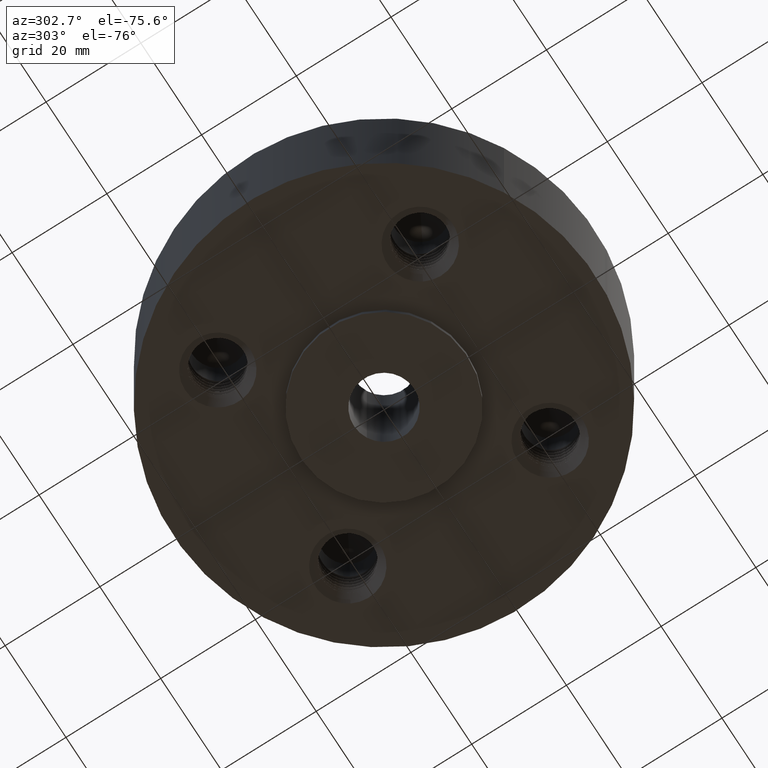
[diagram: clean part render]
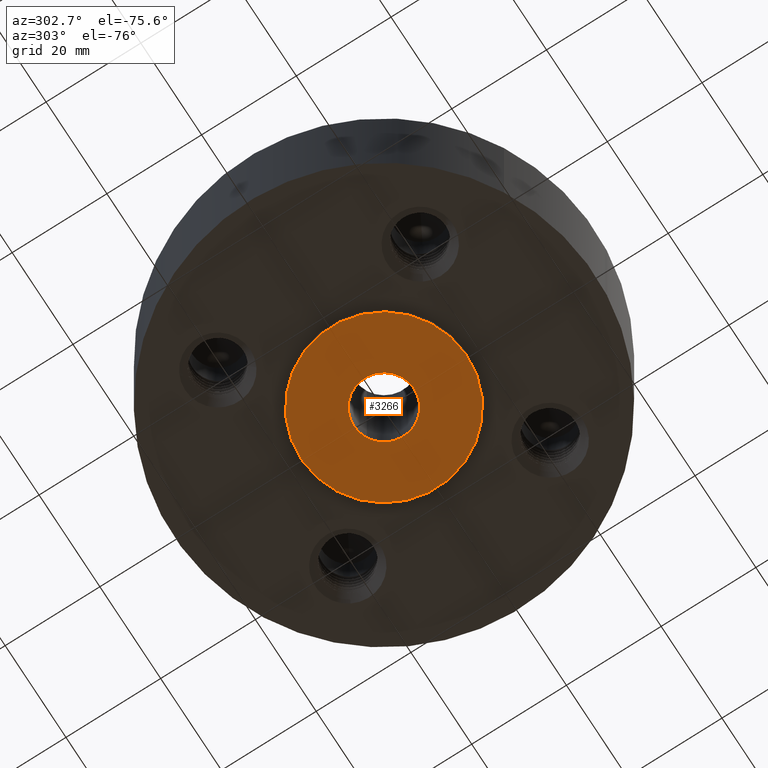
[diagram: same view with one face highlighted and labeled with its STEP entity id]
A machine part, auxiliary view. The second image highlights one B-rep face of the part: STEP entity #3266.
In plain terms, the highlighted planar face has unit normal (0, 0, -1).
Its self-contained STEP definition (entity closure, byte-faithful):
#2798=AXIS2_PLACEMENT_3D('Circle Axis2P3D',#2796,#2797,$) ;
#2824=AXIS2_PLACEMENT_3D('Circle Axis2P3D',#2822,#2823,$) ;
#3242=AXIS2_PLACEMENT_3D('Plane Axis2P3D',#3239,#3240,#3241) ;
#3250=AXIS2_PLACEMENT_3D('Circle Axis2P3D',#3248,#3249,$) ;
#3259=AXIS2_PLACEMENT_3D('Circle Axis2P3D',#3257,#3258,$) ;
#2796=CARTESIAN_POINT('Axis2P3D Location',(0.,0.,-0.0625000000003)) ;
#2800=CARTESIAN_POINT('Vertex',(0.330803621638,0.605531967707,-0.0625000000003)) ;
#2802=CARTESIAN_POINT('Vertex',(-0.330803621638,-0.605531967707,-0.0625000000003)) ;
#2822=CARTESIAN_POINT('Axis2P3D Location',(0.,0.,-0.0625000000003)) ;
#3239=CARTESIAN_POINT('Axis2P3D Location',(0.,0.690000000003,-0.0625000000003)) ;
#3248=CARTESIAN_POINT('Axis2P3D Location',(0.,0.,-0.0625000000003)) ;
#3252=CARTESIAN_POINT('Vertex',(0.119856384652,0.219395640473,-0.0625000000003)) ;
#3254=CARTESIAN_POINT('Vertex',(-0.119856384652,-0.219395640473,-0.0625000000003)) ;
#3257=CARTESIAN_POINT('Axis2P3D Location',(0.,0.,-0.0625000000003)) ;
#2797=DIRECTION('Axis2P3D Direction',(0.,0.,-0.0393700787402)) ;
#2823=DIRECTION('Axis2P3D Direction',(0.,0.,-0.0393700787402)) ;
#3240=DIRECTION('Axis2P3D Direction',(0.,0.,-0.0393700787402)) ;
#3241=DIRECTION('Axis2P3D XDirection',(0.0393700787402,0.,0.)) ;
#3249=DIRECTION('Axis2P3D Direction',(0.,0.,-0.0393700787402)) ;
#3258=DIRECTION('Axis2P3D Direction',(0.,0.,-0.0393700787402)) ;
#3245=ORIENTED_EDGE('',*,*,#2826,.T.) ;
#3246=ORIENTED_EDGE('',*,*,#2804,.T.) ;
#3263=ORIENTED_EDGE('',*,*,#3256,.F.) ;
#3264=ORIENTED_EDGE('',*,*,#3261,.F.) ;
#3265=FACE_BOUND('',#3262,.T.) ;
#3266=ADVANCED_FACE('PartBody',(#3247,#3265),#3243,.T.) ;
#2799=CIRCLE('generated circle',#2798,0.690000000003) ;
#2825=CIRCLE('generated circle',#2824,0.690000000003) ;
#3251=CIRCLE('generated circle',#3250,0.250000000001) ;
#3260=CIRCLE('generated circle',#3259,0.250000000001) ;
#2804=EDGE_CURVE('',#2801,#2803,#2799,.T.) ;
#2826=EDGE_CURVE('',#2803,#2801,#2825,.T.) ;
#3256=EDGE_CURVE('',#3253,#3255,#3251,.T.) ;
#3261=EDGE_CURVE('',#3255,#3253,#3260,.T.) ;
#3244=EDGE_LOOP('',(#3245,#3246)) ;
#3262=EDGE_LOOP('',(#3263,#3264)) ;
#3247=FACE_OUTER_BOUND('',#3244,.T.) ;
#3243=PLANE('',#3242) ;
#2801=VERTEX_POINT('',#2800) ;
#2803=VERTEX_POINT('',#2802) ;
#3253=VERTEX_POINT('',#3252) ;
#3255=VERTEX_POINT('',#3254) ;